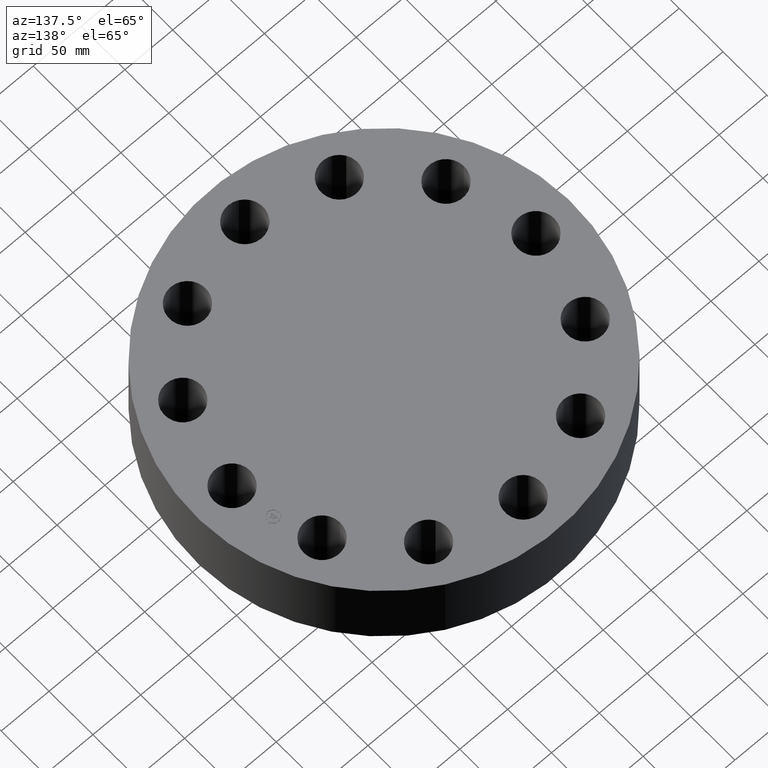
[diagram: clean part render]
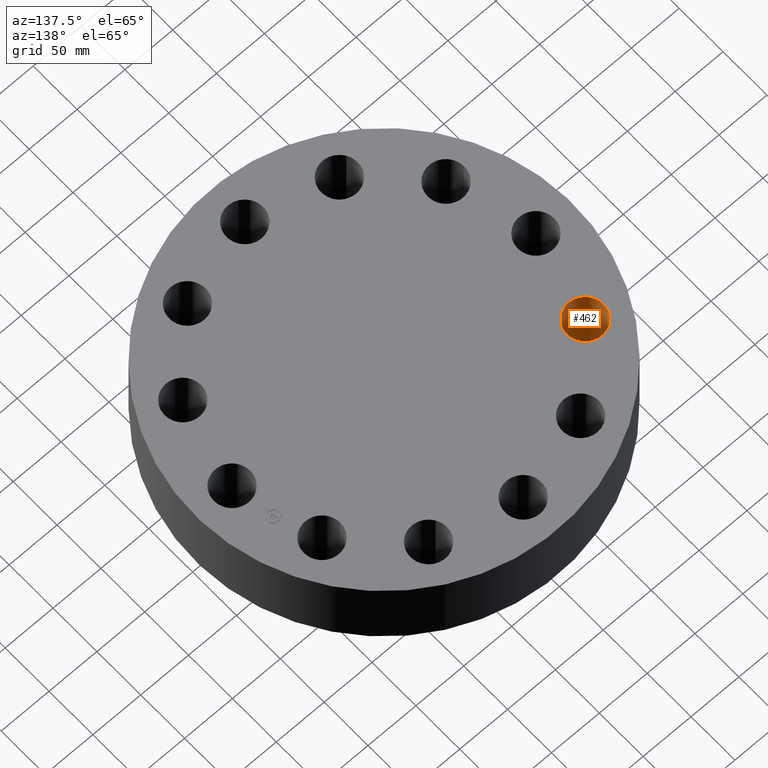
[diagram: same view with one face highlighted and labeled with its STEP entity id]
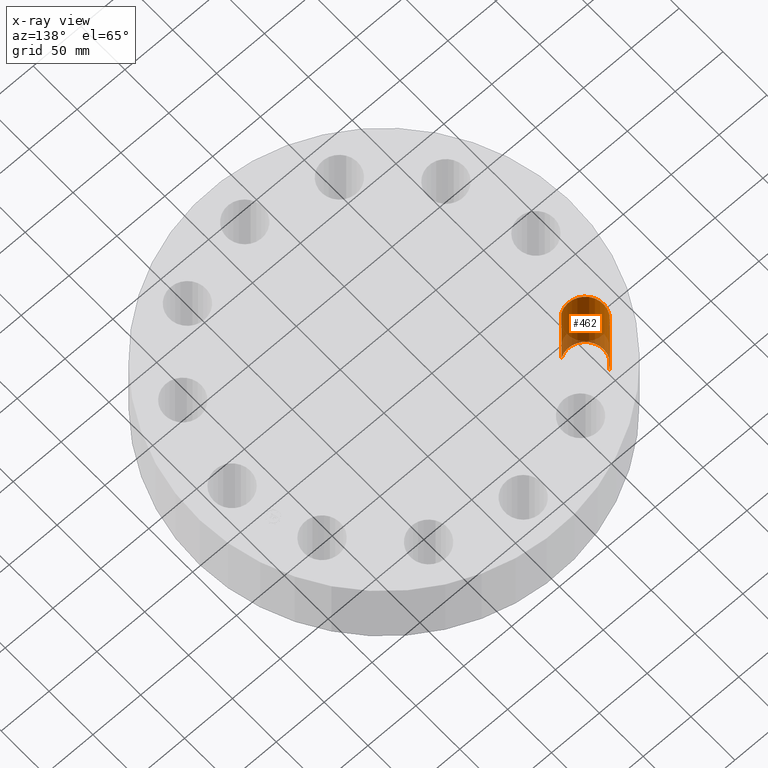
[diagram: x-ray of the same camera — body ghosted, the highlighted face saturated]
A machine part, auxiliary view. The second image highlights one B-rep face of the part: STEP entity #462.
The next image is the same camera in x-ray: the body ghosted, the highlighted face saturated — about 17% of this face is hidden behind the body in this view.
In plain terms, the highlighted cylindrical surface (edge-blend (fillet) strip) has radius 19.05 mm, axis along (0, 0, -1).
Its self-contained STEP definition (entity closure, byte-faithful):
#343=AXIS2_PLACEMENT_3D('Circle Axis2P3D',#341,#342,$) ;
#435=AXIS2_PLACEMENT_3D('Cylinder Axis2P3D',#432,#433,#434) ;
#453=AXIS2_PLACEMENT_3D('Circle Axis2P3D',#451,#452,$) ;
#341=CARTESIAN_POINT('Axis2P3D Location',(-5.41265877367,3.12500000001,0.)) ;
#345=CARTESIAN_POINT('Vertex',(-5.02243675626,2.48451051756,0.)) ;
#347=CARTESIAN_POINT('Vertex',(-5.80288079109,3.76548948246,0.)) ;
#432=CARTESIAN_POINT('Axis2P3D Location',(-5.41265877367,3.12500000001,3.24606299214)) ;
#437=CARTESIAN_POINT('Line Origine',(-5.02243675626,2.48451051756,1.62500000001)) ;
#441=CARTESIAN_POINT('Vertex',(-5.02243675626,2.48451051756,3.25000000001)) ;
#444=CARTESIAN_POINT('Line Origine',(-5.80288079109,3.76548948246,1.62500000001)) ;
#448=CARTESIAN_POINT('Vertex',(-5.80288079109,3.76548948246,3.25000000001)) ;
#451=CARTESIAN_POINT('Axis2P3D Location',(-5.41265877367,3.12500000001,3.25000000001)) ;
#342=DIRECTION('Axis2P3D Direction',(0.,0.,-0.0393700787402)) ;
#433=DIRECTION('Axis2P3D Direction',(0.,0.,-0.0393700787402)) ;
#434=DIRECTION('Axis2P3D XDirection',(-0.0204840954021,0.0336214951417,0.)) ;
#438=DIRECTION('Vector Direction',(0.,0.,-0.0393700787402)) ;
#445=DIRECTION('Vector Direction',(0.,0.,-0.0393700787402)) ;
#452=DIRECTION('Axis2P3D Direction',(0.,0.,-0.0393700787402)) ;
#439=VECTOR('Line Direction',#438,0.0393700787402) ;
#446=VECTOR('Line Direction',#445,0.0393700787402) ;
#457=ORIENTED_EDGE('',*,*,#443,.F.) ;
#458=ORIENTED_EDGE('',*,*,#349,.T.) ;
#459=ORIENTED_EDGE('',*,*,#450,.T.) ;
#460=ORIENTED_EDGE('',*,*,#455,.F.) ;
#462=ADVANCED_FACE('PartBody',(#461),#436,.F.) ;
#344=CIRCLE('generated circle',#343,0.750000000003) ;
#454=CIRCLE('generated circle',#453,0.750000000003) ;
#436=CYLINDRICAL_SURFACE('generated cylinder',#435,0.750000000003) ;
#349=EDGE_CURVE('',#346,#348,#344,.T.) ;
#443=EDGE_CURVE('',#346,#442,#440,.F.) ;
#450=EDGE_CURVE('',#348,#449,#447,.F.) ;
#455=EDGE_CURVE('',#442,#449,#454,.T.) ;
#456=EDGE_LOOP('',(#457,#458,#459,#460)) ;
#461=FACE_OUTER_BOUND('',#456,.T.) ;
#440=LINE('Line',#437,#439) ;
#447=LINE('Line',#444,#446) ;
#346=VERTEX_POINT('',#345) ;
#348=VERTEX_POINT('',#347) ;
#442=VERTEX_POINT('',#441) ;
#449=VERTEX_POINT('',#448) ;